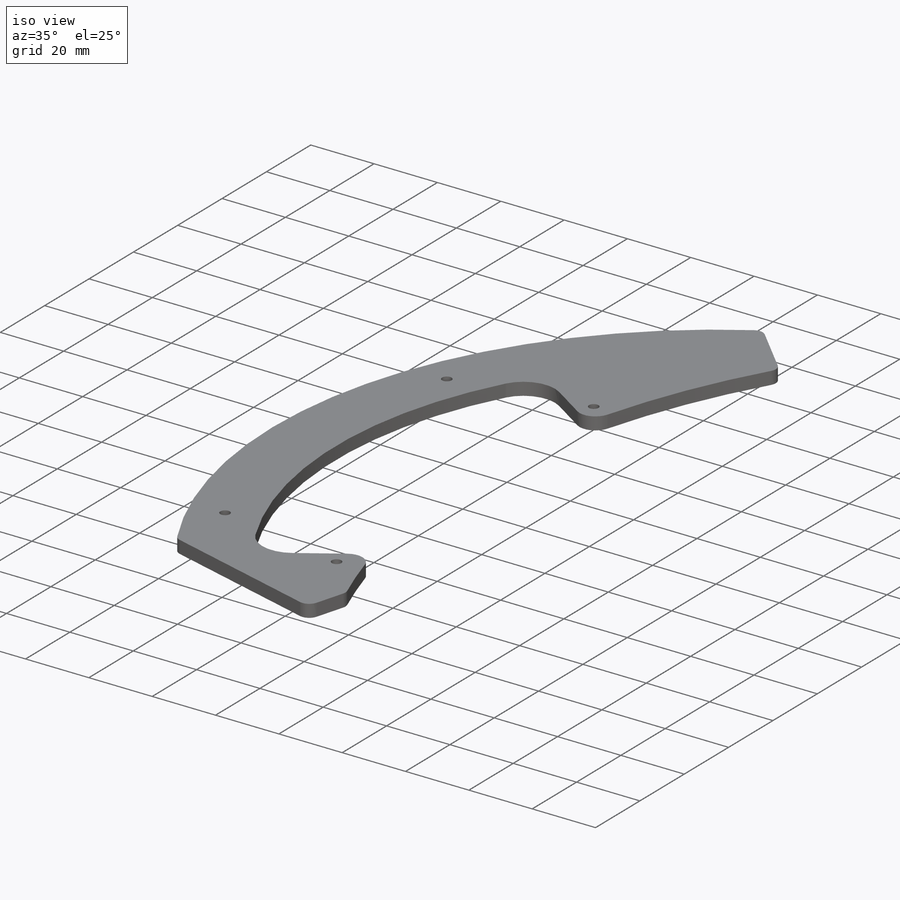
[diagram: iso view]
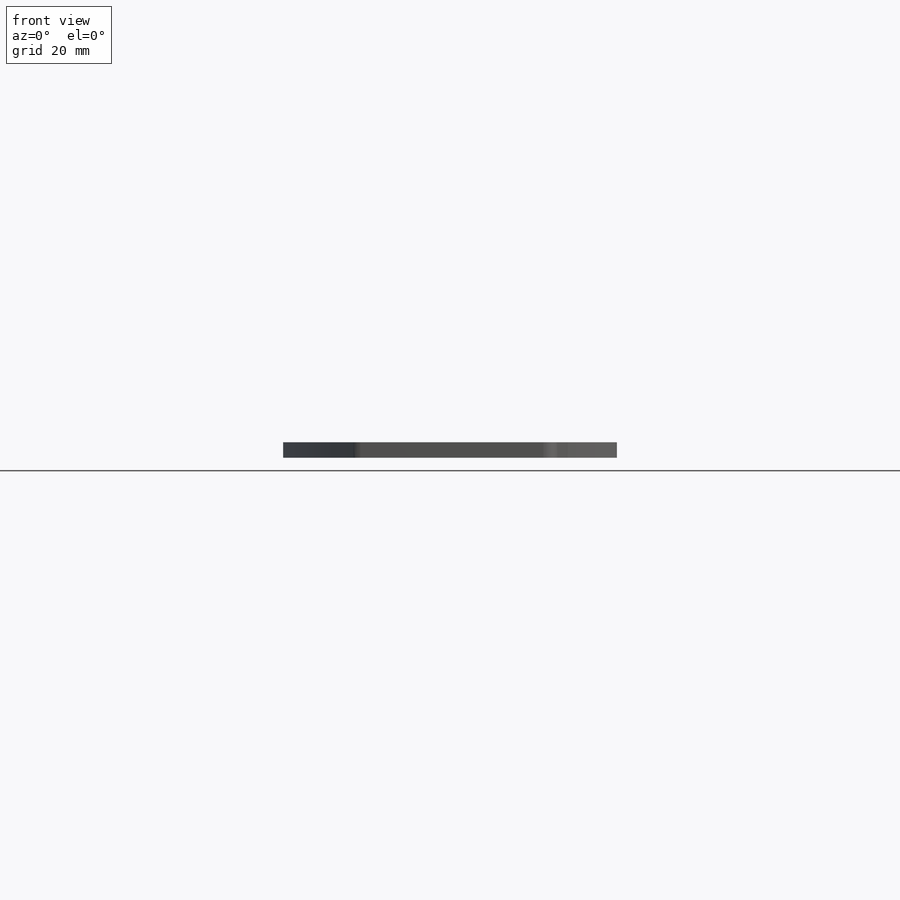
[diagram: front view]
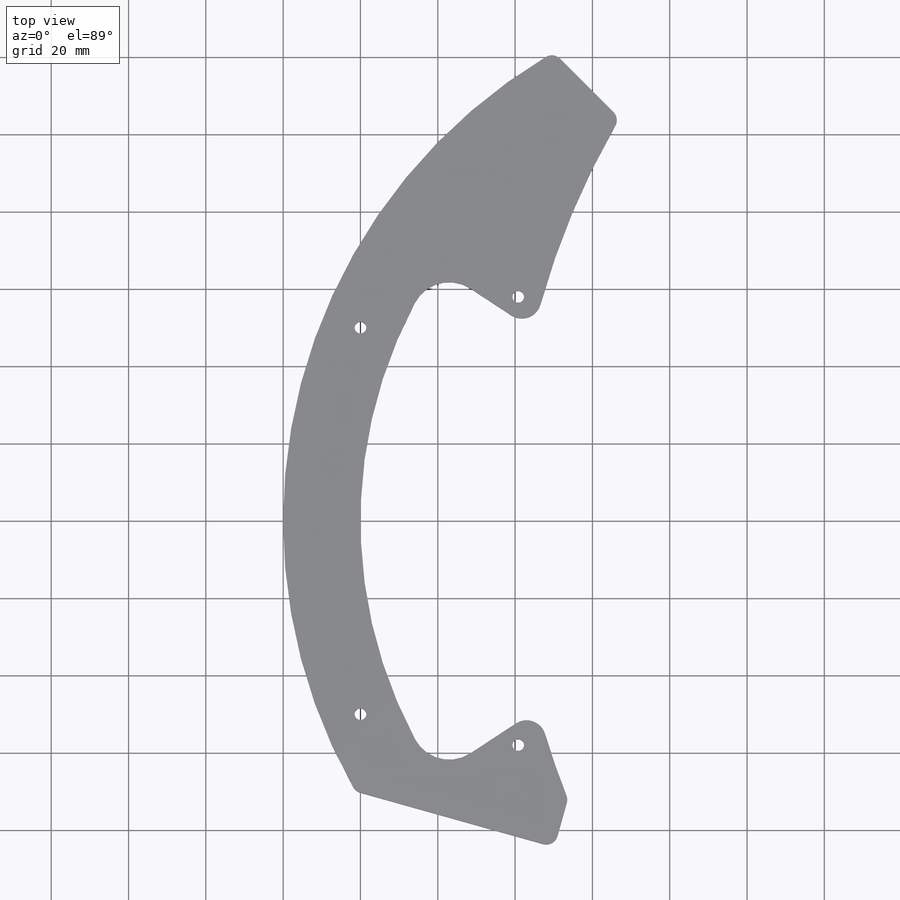
[diagram: top view]
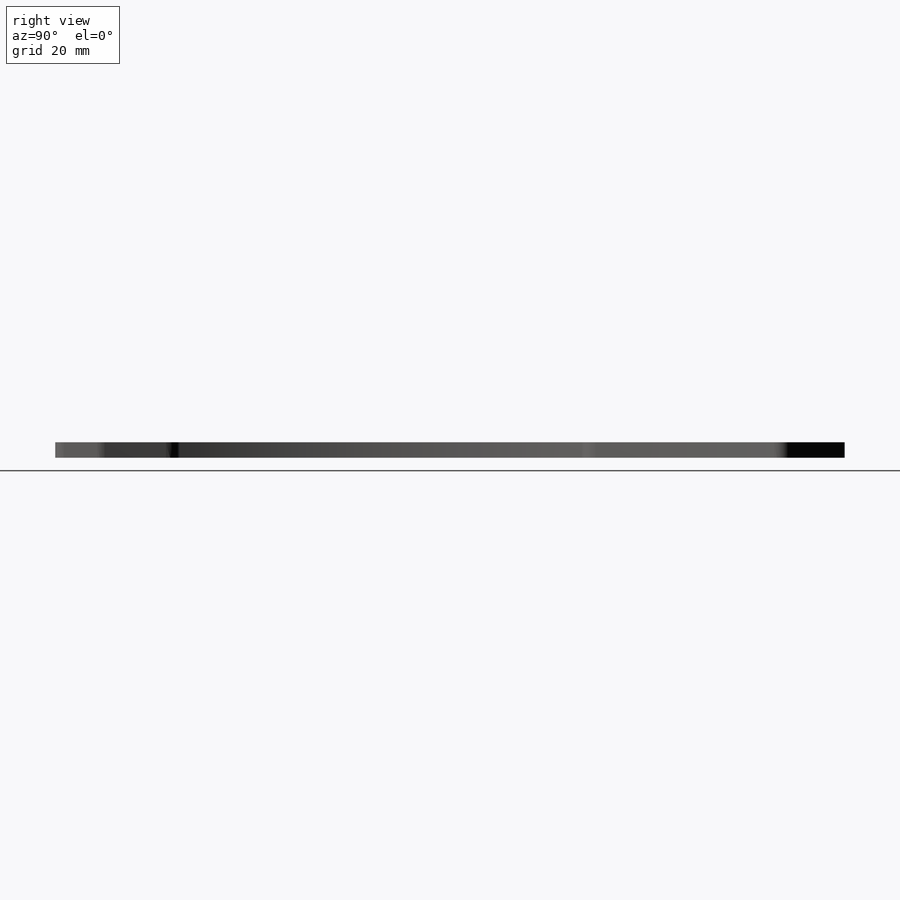
[diagram: right view]
SOLIDWORKS PART (.sldprt)
format: sldprt  version: not decoded by parser v0  size: 411,648 bytes
history: native  units: mm
features: sketch x9, cut_extrude x8, fillet x6, material x1, extrude x1 (+11 scaffold rows collapsed)
feature tree (36):
  scaffold x11  (default folders/planes/origin — collapsed)
  material  "PMMA"
  sketch  "Sketch1"  dims[D1=280.0mm]
  extrude  "Boss-Extrude1"  Depth=4mm
  sketch  "Sketch17"  dims[D1=90.0mm D2=50.0mm D3=50.0mm D4=70.0mm]
  cut_extrude  "Cut-Extrude1"  [1 undecoded]
  sketch  "Sketch19"  dims[c1.D5=3.0mm c1.D3=3.0mm c1.D1=154.15mm c1.D2=111.72mm c2.D3=55.86mm c2.D4=77.075mm c2.D6=~95.188735mm c3.D3=55.86mm c3.D6=97.0mm c3.D1=15.0mm c3.D2=15.0mm]
  cut_extrude  "Cut-Extrude3"  [1 undecoded]
  sketch  "Sketch20"  dims[c1.D1=25.0mm c1.D2=100.0mm c1.D3=50.0mm c1.D4=~36.040204mm c2.D4=45.0deg c2.D5=150.0mm c3.D5=45.0deg c3.D1=140.0mm]
  cut_extrude  "Cut-Extrude4"  [1 undecoded]
  sketch  "Sketch21"  dims[c1.D1=60.0mm c1.D2=10.0mm c1.D3=111.72mm c1.D4=154.15mm c1.D5=55.86mm c1.D6=77.075mm c1.D7=20.0mm c1.D8=97.0mm c2.D3=15.0mm]
  cut_extrude  "Cut-Extrude5"  [1 undecoded]
  fillet  "Fillet1"  Radius=20mm
  fillet  "Fillet2"  Radius=10mm
  sketch  "Sketch22"  dims[D1=85.0mm D2=85.0mm D3=48.0mm D4=53.0mm D5=33.0mm D6=33.0mm D7=26.0mm D8=24.0mm]
  cut_extrude  "Cut-Extrude6"  [1 undecoded]
  fillet  "Fillet3"  Radius=3mm
  sketch  "Sketch23"  dims[c1.D1=3.0mm c1.D2=3.0mm c1.D3=200.0mm c2.D1=20.0mm c2.D2=20.0mm c2.D3=~169.474095mm c3.D2=20.0mm c3.D4=~20.303954mm c4.D4=90.0deg c4.D5=10.0mm c4.D1=~206.213106mm]
  cut_extrude  "Cut-Extrude8"  [1 undecoded]
  sketch  "Sketch24"  dims[c1.D2=3.0mm c1.D3=~127.62289mm c1.D1=5.0mm c2.D2=5.0mm c2.D3=20.0mm]
  cut_extrude  "Cut-Extrude9"  [1 undecoded]
  fillet  "Fillet4"  Radius=5mm
  fillet  "Fillet6"  Radius=10mm
  sketch  "Sketch25"  dims[c1.D1=3.0mm c1.D2=50.0mm c1.D3=~132.925205mm c2.D2=50.0mm c2.D3=50.0mm c2.D4=120.0mm]
  cut_extrude  "Cut-Extrude10"  [1 undecoded]
  fillet  "Fillet5"  Radius=3mm
decode coverage: 16 of 24 modeling features carry decoded parameters
note: ~ marks probable driven/reference dimensions
note: 8 parameter values undecoded
summary: no parameter record found for 8 features
note: suppression state not decoded; provenance and decode notes live in map.json
